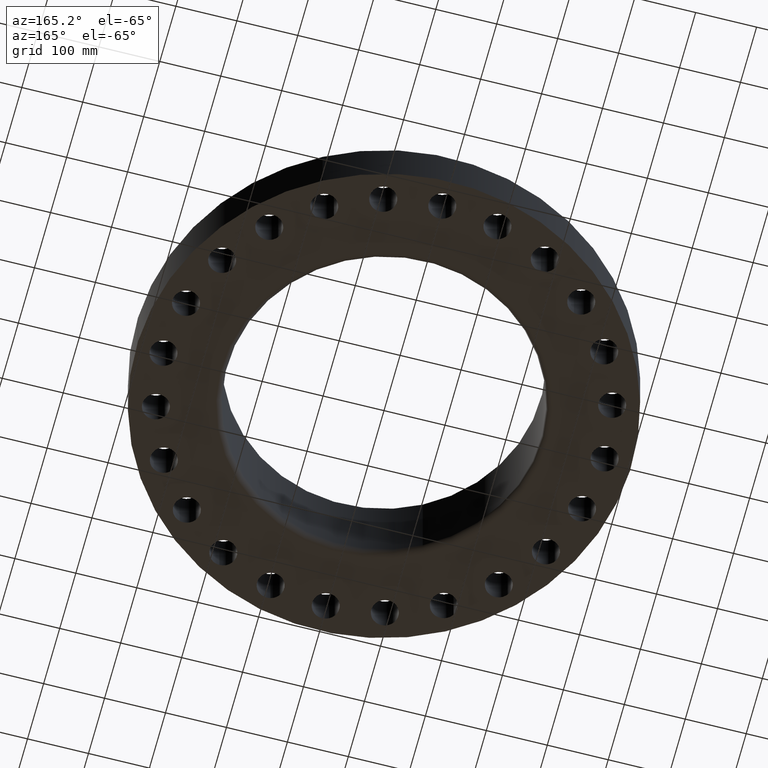
[diagram: clean part render]
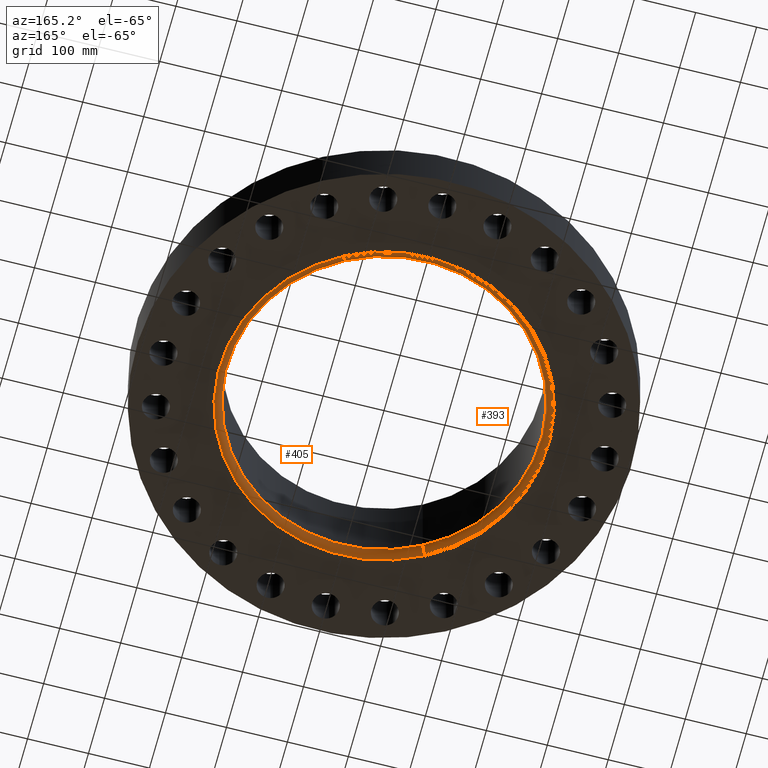
[diagram: same view with one multi-face feature highlighted, each face labeled with its STEP entity id]
A machine part, auxiliary view. The highlighted faces form ONE feature: a constant-radius fillet chain: 2 tangent blend faces with common blend radius 12.7 mm. The faces share edges in the B-rep.
Their STEP definitions:
[1] entity #393 (Torus):
#353=AXIS2_PLACEMENT_3D('Circle Axis2P3D',#351,#352,$) ;
#366=AXIS2_PLACEMENT_3D('Torus Axis2P3D',#363,#364,#365) ;
#370=AXIS2_PLACEMENT_3D('Circle Axis2P3D',#368,#369,$) ;
#377=AXIS2_PLACEMENT_3D('Circle Axis2P3D',#375,#376,$) ;
#384=AXIS2_PLACEMENT_3D('Circle Axis2P3D',#382,#383,$) ;
#329=CARTESIAN_POINT('Vertex',(4.85418357839,8.88552343918,0.500000000002)) ;
#336=CARTESIAN_POINT('Vertex',(-4.85418357839,-8.88552343918,0.500000000002)) ;
#351=CARTESIAN_POINT('Axis2P3D Location',(0.,0.,0.500000000002)) ;
#363=CARTESIAN_POINT('Axis2P3D Location',(0.,0.,0.500000000002)) ;
#368=CARTESIAN_POINT('Axis2P3D Location',(-5.09389634769,-9.32431472012,0.500000000002)) ;
#372=CARTESIAN_POINT('Vertex',(-5.09389634769,-9.32431472012,-1.18890024684E-015)) ;
#375=CARTESIAN_POINT('Axis2P3D Location',(0.,0.,-1.18890024684E-015)) ;
#379=CARTESIAN_POINT('Vertex',(5.09389634769,9.32431472012,-1.18890024684E-015)) ;
#382=CARTESIAN_POINT('Axis2P3D Location',(5.09389634769,9.32431472012,0.500000000002)) ;
#352=DIRECTION('Axis2P3D Direction',(0.,0.,-0.0393700787402)) ;
#364=DIRECTION('Axis2P3D Direction',(0.,0.,-0.0393700787402)) ;
#365=DIRECTION('Axis2P3D XDirection',(0.0188750212049,0.0345504945626,0.)) ;
#369=DIRECTION('Axis2P3D Direction',(0.0345504945626,-0.0188750212049,0.)) ;
#376=DIRECTION('Axis2P3D Direction',(0.,0.,-0.0393700787402)) ;
#383=DIRECTION('Axis2P3D Direction',(-0.0345504945626,0.0188750212049,0.)) ;
#388=ORIENTED_EDGE('',*,*,#355,.F.) ;
#389=ORIENTED_EDGE('',*,*,#374,.T.) ;
#390=ORIENTED_EDGE('',*,*,#381,.T.) ;
#391=ORIENTED_EDGE('',*,*,#386,.F.) ;
#393=ADVANCED_FACE('PartBody',(#392),#367,.T.) ;
#354=CIRCLE('generated circle',#353,10.125) ;
#371=CIRCLE('generated circle',#370,0.500000000002) ;
#378=CIRCLE('generated circle',#377,10.625) ;
#385=CIRCLE('generated circle',#384,0.500000000002) ;
#367=TOROIDAL_SURFACE('homeo Torus',#366,10.625,0.500000000002) ;
#355=EDGE_CURVE('',#337,#330,#354,.T.) ;
#374=EDGE_CURVE('',#337,#373,#371,.F.) ;
#381=EDGE_CURVE('',#373,#380,#378,.T.) ;
#386=EDGE_CURVE('',#330,#380,#385,.F.) ;
#387=EDGE_LOOP('',(#388,#389,#390,#391)) ;
#392=FACE_OUTER_BOUND('',#387,.T.) ;
#330=VERTEX_POINT('',#329) ;
#337=VERTEX_POINT('',#336) ;
#373=VERTEX_POINT('',#372) ;
#380=VERTEX_POINT('',#379) ;
[2] entity #405 (Torus):
#334=AXIS2_PLACEMENT_3D('Circle Axis2P3D',#332,#333,$) ;
#366=AXIS2_PLACEMENT_3D('Torus Axis2P3D',#363,#364,#365) ;
#370=AXIS2_PLACEMENT_3D('Circle Axis2P3D',#368,#369,$) ;
#384=AXIS2_PLACEMENT_3D('Circle Axis2P3D',#382,#383,$) ;
#396=AXIS2_PLACEMENT_3D('Circle Axis2P3D',#394,#395,$) ;
#329=CARTESIAN_POINT('Vertex',(4.85418357839,8.88552343918,0.500000000002)) ;
#332=CARTESIAN_POINT('Axis2P3D Location',(0.,0.,0.500000000002)) ;
#336=CARTESIAN_POINT('Vertex',(-4.85418357839,-8.88552343918,0.500000000002)) ;
#363=CARTESIAN_POINT('Axis2P3D Location',(0.,0.,0.500000000002)) ;
#368=CARTESIAN_POINT('Axis2P3D Location',(-5.09389634769,-9.32431472012,0.500000000002)) ;
#372=CARTESIAN_POINT('Vertex',(-5.09389634769,-9.32431472012,-1.18890024684E-015)) ;
#379=CARTESIAN_POINT('Vertex',(5.09389634769,9.32431472012,-1.18890024684E-015)) ;
#382=CARTESIAN_POINT('Axis2P3D Location',(5.09389634769,9.32431472012,0.500000000002)) ;
#394=CARTESIAN_POINT('Axis2P3D Location',(0.,0.,-1.18890024684E-015)) ;
#333=DIRECTION('Axis2P3D Direction',(0.,0.,-0.0393700787402)) ;
#364=DIRECTION('Axis2P3D Direction',(0.,0.,-0.0393700787402)) ;
#365=DIRECTION('Axis2P3D XDirection',(0.0188750212049,0.0345504945626,0.)) ;
#369=DIRECTION('Axis2P3D Direction',(0.0345504945626,-0.0188750212049,0.)) ;
#383=DIRECTION('Axis2P3D Direction',(-0.0345504945626,0.0188750212049,0.)) ;
#395=DIRECTION('Axis2P3D Direction',(0.,0.,-0.0393700787402)) ;
#400=ORIENTED_EDGE('',*,*,#338,.F.) ;
#401=ORIENTED_EDGE('',*,*,#386,.T.) ;
#402=ORIENTED_EDGE('',*,*,#398,.T.) ;
#403=ORIENTED_EDGE('',*,*,#374,.F.) ;
#405=ADVANCED_FACE('PartBody',(#404),#367,.T.) ;
#335=CIRCLE('generated circle',#334,10.125) ;
#371=CIRCLE('generated circle',#370,0.500000000002) ;
#385=CIRCLE('generated circle',#384,0.500000000002) ;
#397=CIRCLE('generated circle',#396,10.625) ;
#367=TOROIDAL_SURFACE('homeo Torus',#366,10.625,0.500000000002) ;
#338=EDGE_CURVE('',#330,#337,#335,.T.) ;
#374=EDGE_CURVE('',#337,#373,#371,.F.) ;
#386=EDGE_CURVE('',#330,#380,#385,.F.) ;
#398=EDGE_CURVE('',#380,#373,#397,.T.) ;
#399=EDGE_LOOP('',(#400,#401,#402,#403)) ;
#404=FACE_OUTER_BOUND('',#399,.T.) ;
#330=VERTEX_POINT('',#329) ;
#337=VERTEX_POINT('',#336) ;
#373=VERTEX_POINT('',#372) ;
#380=VERTEX_POINT('',#379) ;